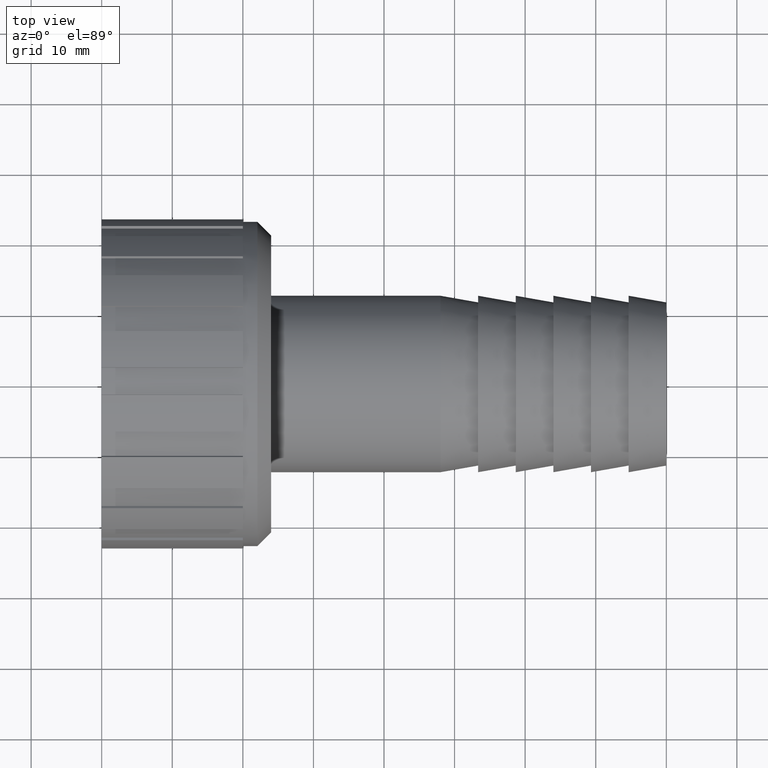
[diagram: clean part render]
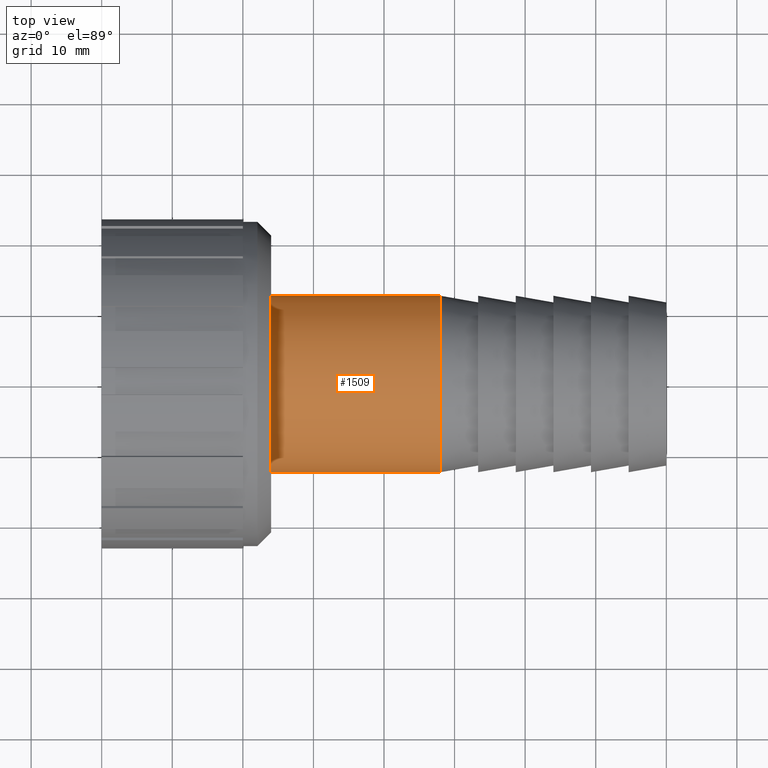
[diagram: same view with one face highlighted and labeled with its STEP entity id]
A machine part, top view. The second image highlights one B-rep face of the part: STEP entity #1509.
In plain terms, the highlighted cylindrical surface (bore or boss wall) has radius 12.5 mm, axis along (-1, 0, 0).
Its self-contained STEP definition (entity closure, byte-faithful):
#41=CYLINDRICAL_SURFACE('',#1678,12.5);
#61=FACE_BOUND('',#332,.T.);
#129=CIRCLE('',#1646,12.5);
#144=CIRCLE('',#1677,12.5);
#228=FACE_OUTER_BOUND('',#331,.T.);
#331=EDGE_LOOP('',(#1367));
#332=EDGE_LOOP('',(#1368));
#720=VERTEX_POINT('',#2537);
#735=VERTEX_POINT('',#2583);
#931=EDGE_CURVE('',#720,#720,#129,.T.);
#946=EDGE_CURVE('',#735,#735,#144,.T.);
#1367=ORIENTED_EDGE('',*,*,#946,.T.);
#1368=ORIENTED_EDGE('',*,*,#931,.F.);
#1509=ADVANCED_FACE('',(#228,#61),#41,.T.);
#1646=AXIS2_PLACEMENT_3D('',#2538,#2077,#2078);
#1677=AXIS2_PLACEMENT_3D('',#2584,#2139,#2140);
#1678=AXIS2_PLACEMENT_3D('',#2585,#2141,#2142);
#2077=DIRECTION('center_axis',(-1.,0.,0.));
#2078=DIRECTION('ref_axis',(0.,0.,1.));
#2139=DIRECTION('center_axis',(-1.,0.,0.));
#2140=DIRECTION('ref_axis',(0.,0.,1.));
#2141=DIRECTION('center_axis',(-1.,0.,0.));
#2142=DIRECTION('ref_axis',(0.,-1.,0.));
#2537=CARTESIAN_POINT('',(24.,-12.5,0.));
#2538=CARTESIAN_POINT('Origin',(24.,0.,0.));
#2583=CARTESIAN_POINT('',(48.,-12.5,0.));
#2584=CARTESIAN_POINT('Origin',(48.,0.,0.));
#2585=CARTESIAN_POINT('Origin',(36.,0.,0.));